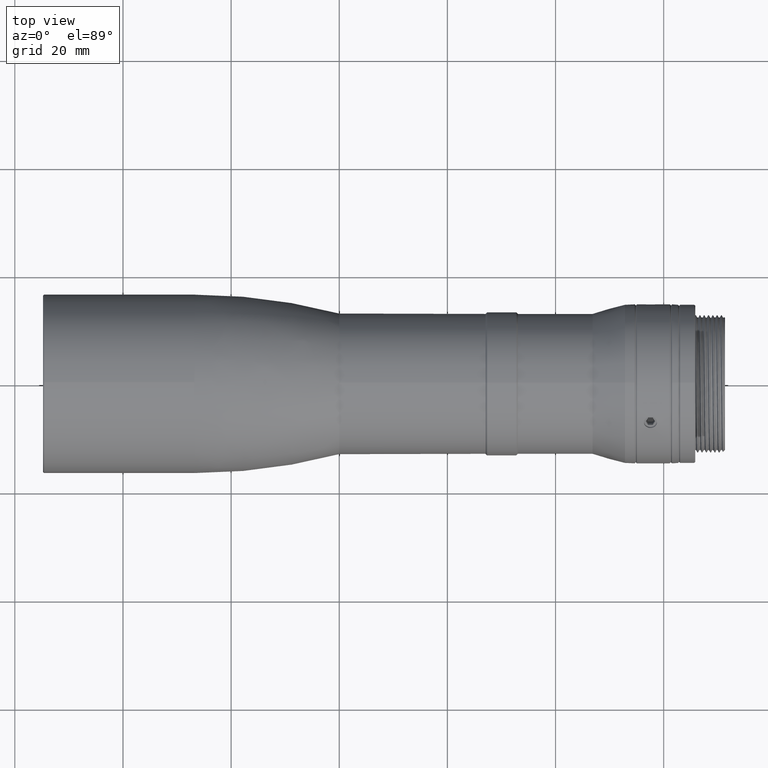
[diagram: clean part render]
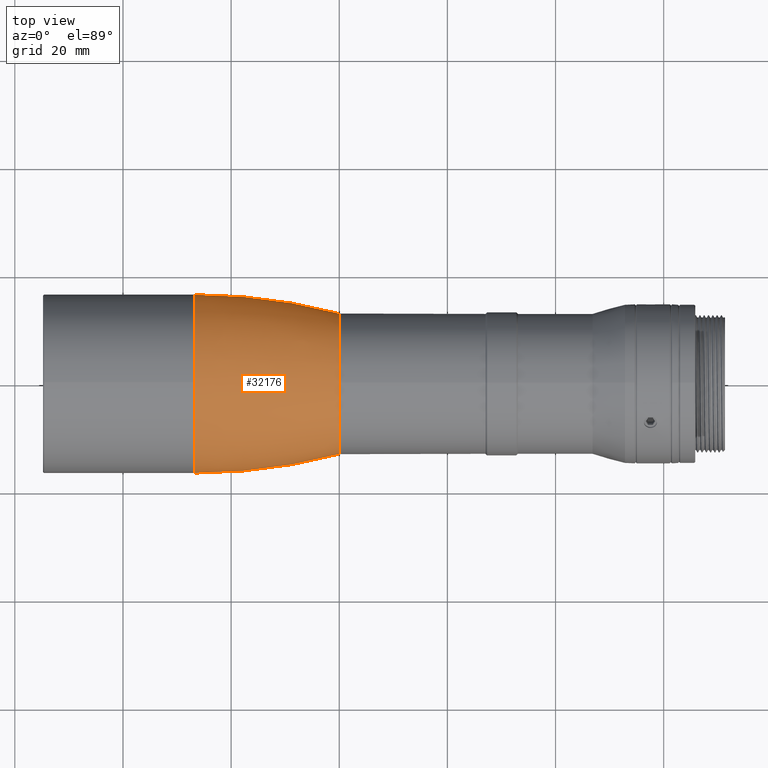
[diagram: same view with one face highlighted and labeled with its STEP entity id]
A machine part, top view. The second image highlights one B-rep face of the part: STEP entity #32176.
In plain terms, the highlighted face is a freeform B-spline surface patch.
Its self-contained STEP definition (entity closure, byte-faithful):
#320 = CARTESIAN_POINT ( 'NONE',  ( -26.80000000003987637, 16.49706879749355792, -0.3110001454116031461 ) ) ;
#472 = CARTESIAN_POINT ( 'NONE',  ( -26.80000000004443095, -7.418881565261814840E-05, 16.49999999981629983 ) ) ;
#639 = CARTESIAN_POINT ( 'NONE',  ( -26.80000000004443805, -9.810667545710922255, 16.49995588852528172 ) ) ;
#810 = CARTESIAN_POINT ( 'NONE',  ( 1.738941088189336216E-11, 12.99769056771530096, -0.2450304175911384719 ) ) ;
#1116 = CARTESIAN_POINT ( 'NONE',  ( 1.381956274801838717E-11, -5.845179419267756461E-05, 12.99999999985409183 ) ) ;
#1641 = DIRECTION ( 'NONE',  ( 0.000000000000000000, 0.000000000000000000, 1.000000000000000000 ) ) ;
#1710 = DIRECTION ( 'NONE',  ( 0.000000000000000000, 0.000000000000000000, 1.000000000000000000 ) ) ;
#1800 = DIRECTION ( 'NONE',  ( 2.697324574236714523E-13, -8.992583322630788348E-06, 0.9999999999595667877 ) ) ;
#2235 = AXIS2_PLACEMENT_3D ( 'NONE', #19603, #1800, #29392 ) ;
#2938 = CARTESIAN_POINT ( 'NONE',  ( 1.381957211513567073E-11, -7.729616854192411068, 12.99996524550353705 ) ) ;
#3097 = CARTESIAN_POINT ( 'NONE',  ( -17.73994872605382156, 16.49706879749370003, -0.3110001454091636530 ) ) ;
#3807 = CIRCLE ( 'NONE', #2235, 104.3557142859954325 ) ;
#5543 = CARTESIAN_POINT ( 'NONE',  ( -8.756185135818945753, -15.32402193307882676, -0.2890239020274884552 ) ) ;
#5854 = CARTESIAN_POINT ( 'NONE',  ( 1.530651451122814413E-11, -13.14344839263077880, 7.483036646119382240 ) ) ;
#6459 = CARTESIAN_POINT ( 'NONE',  ( 0.000000000000000000, 0.000000000000000000, 8.938311686664618842E-14 ) ) ;
#7024 = CIRCLE ( 'NONE', #8072, 12.99999999999000089 ) ;
#7439 = ORIENTED_EDGE ( 'NONE', *, *, #24541, .T. ) ;
#7650 = VERTEX_POINT ( 'NONE', #29074 ) ;
#7836 = CARTESIAN_POINT ( 'NONE',  ( -26.80000000004443805, 9.810519168079608221, 16.50004411110731795 ) ) ;
#8072 = AXIS2_PLACEMENT_3D ( 'NONE', #6459, #29003, #21473 ) ;
#8168 = CARTESIAN_POINT ( 'NONE',  ( 1.530648265535714834E-11, 13.14338110026581496, 7.483154839376892298 ) ) ;
#8335 = VERTEX_POINT ( 'NONE', #8512 ) ;
#8457 = EDGE_CURVE ( 'NONE', #16132, #15035, #3807, .T. ) ;
#8512 = CARTESIAN_POINT ( 'NONE',  ( -3.503806656360340239E-12, 1.592040838890955025E-15, 12.99999999999010036 ) ) ;
#9207 = AXIS2_PLACEMENT_3D ( 'NONE', #18179, #15714, #10974 ) ;
#10256 = CIRCLE ( 'NONE', #9207, 104.3557142859954325 ) ;
#10601 = CARTESIAN_POINT ( 'NONE',  ( -17.73994872605382156, -16.49706600013184499, -0.3111484966688090603 ) ) ;
#10921 = CARTESIAN_POINT ( 'NONE',  ( -8.756185135823146837, 9.112930196517474712, 15.32678828183328079 ) ) ;
#10974 = DIRECTION ( 'NONE',  ( 0.000000000000000000, -0.9999999999595666766, -8.992583580296957294E-06 ) ) ;
#12711 = EDGE_CURVE ( 'NONE', #15035, #21256, #29954, .T. ) ;
#12732 = FACE_OUTER_BOUND ( 'NONE', #25549, .T. ) ;
#13048 = CARTESIAN_POINT ( 'NONE',  ( -17.73994872605648609, 16.68198370419255383, 9.497850373055531037 ) ) ;
#13177 = CARTESIAN_POINT ( 'NONE',  ( 1.368904832324280096E-11, 12.99999999947404028, 0.0001139622336825304023 ) ) ;
#13207 = DIRECTION ( 'NONE',  ( 1.000000000000000000, 0.000000000000000000, 0.000000000000000000 ) ) ;
#13271 = ORIENTED_EDGE ( 'NONE', *, *, #8457, .T. ) ;
#13518 = CARTESIAN_POINT ( 'NONE',  ( -26.80000000004445226, 2.020667218593134678E-15, 16.50000000000000000 ) ) ;
#13533 = CARTESIAN_POINT ( 'NONE',  ( -26.80000000004256577, -16.68206911373250279, 9.497700358533995413 ) ) ;
#14478 = EDGE_CURVE ( 'NONE', #8335, #31032, #7024, .T. ) ;
#15035 = VERTEX_POINT ( 'NONE', #16422 ) ;
#15539 = DIRECTION ( 'NONE',  ( 1.000000000000000000, 0.000000000000000000, 2.695235889510024739E-13 ) ) ;
#15714 = DIRECTION ( 'NONE',  ( 2.698431476603614308E-13, -8.992583580296957294E-06, 0.9999999999595667877 ) ) ;
#16132 = VERTEX_POINT ( 'NONE', #13177 ) ;
#16422 = CARTESIAN_POINT ( 'NONE',  ( -26.79999958351570299, 16.49999999965815078, 7.418880885253349667E-05 ) ) ;
#16808 = DIRECTION ( 'NONE',  ( 1.000000000000000000, 0.000000000000000000, 0.000000000000000000 ) ) ;
#17266 =( BOUNDED_SURFACE ( )  B_SPLINE_SURFACE ( 3, 3, ( 
 ( #320, #20249, #7836, #472, #639, #13533, #27914 ),
 ( #3097, #13048, #18125, #25780, #23012, #27748, #10601 ),
 ( #23344, #17959, #10921, #20570, #30558, #25936, #5543 ),
 ( #810, #8168, #28068, #1116, #2938, #5854, #20410 ) ),
 .UNSPECIFIED., .F., .F., .T. ) 
 B_SPLINE_SURFACE_WITH_KNOTS ( ( 4, 4 ),
 ( 4, 3, 4 ),
 ( 0.01928601507306045015, 0.9807118293945519261 ),
 ( 0.000000000000000000, 0.5000000000000000000, 1.000000000000000000 ),
 .UNSPECIFIED. ) 
 GEOMETRIC_REPRESENTATION_ITEM ( )  RATIONAL_B_SPLINE_SURFACE ( (
 ( 0.9996555249444359914, 0.7999973438651920565, 0.7999973438651920565, 0.9996555249444359914, 0.7999973438651920565, 0.7999973438651920565, 0.9996555249444359914),
 ( 0.9940439575235160419, 0.7955065578697809725, 0.7955065578697809725, 0.9940439575235160419, 0.7955065578697809725, 0.7955065578697809725, 0.9940439575235160419),
 ( 0.9940439449423189577, 0.7955065478013879643, 0.7955065478013879643, 0.9940439449423189577, 0.7955065478013879643, 0.7955065478013879643, 0.9940439449423189577),
 ( 0.9996554872008429626, 0.7999973136600130319, 0.7999973136600130319, 0.9996554872008429626, 0.7999973136600130319, 0.7999973136600130319, 0.9996554872008429626) ) ) 
 REPRESENTATION_ITEM ( '' )  SURFACE ( )  );
#17959 = CARTESIAN_POINT ( 'NONE',  ( -8.756185135821400678, 15.49579083748996489, 8.822494098809784191 ) ) ;
#18125 = CARTESIAN_POINT ( 'NONE',  ( -17.73994872605837259, 9.810519168079677499, 16.50004411110991853 ) ) ;
#18179 = CARTESIAN_POINT ( 'NONE',  ( -26.80000000003840199, 87.85571428245971504, 0.0007900498606580300034 ) ) ;
#18313 = CARTESIAN_POINT ( 'NONE',  ( 0.000000000000000000, 0.000000000000000000, 8.938311686664618842E-14 ) ) ;
#19310 = CIRCLE ( 'NONE', #26588, 16.50000000000000000 ) ;
#19475 = ORIENTED_EDGE ( 'NONE', *, *, #14478, .F. ) ;
#19603 = CARTESIAN_POINT ( 'NONE',  ( -26.80000000003840199, -87.85571428245971504, -0.0007900498237524419343 ) ) ;
#20249 = CARTESIAN_POINT ( 'NONE',  ( -26.80000000004256577, 16.68198370419242593, 9.497850373053019268 ) ) ;
#20410 = CARTESIAN_POINT ( 'NONE',  ( 1.738944238456809147E-11, -12.99768836373322145, -0.2451473004018522306 ) ) ;
#20570 = CARTESIAN_POINT ( 'NONE',  ( -8.756185135823148613, -6.891352913705961697E-05, 15.32674730712957611 ) ) ;
#20607 = DIRECTION ( 'NONE',  ( 2.695235889510024739E-13, 0.000000000000000000, -1.000000000000000000 ) ) ;
#21236 = CARTESIAN_POINT ( 'NONE',  ( -26.80000000004445226, 0.000000000000000000, 0.000000000000000000 ) ) ;
#21256 = VERTEX_POINT ( 'NONE', #13518 ) ;
#21358 = ORIENTED_EDGE ( 'NONE', *, *, #12711, .T. ) ;
#21473 = DIRECTION ( 'NONE',  ( 2.695235889510024739E-13, 0.000000000000000000, -1.000000000000000000 ) ) ;
#22966 = AXIS2_PLACEMENT_3D ( 'NONE', #18313, #15539, #20607 ) ;
#23012 = CARTESIAN_POINT ( 'NONE',  ( -17.73994872605837259, -9.810667545710989756, 16.49995588852783612 ) ) ;
#23344 = CARTESIAN_POINT ( 'NONE',  ( -8.756185135818945753, 15.32402453153085098, -0.2888860994656853309 ) ) ;
#24230 = ORIENTED_EDGE ( 'NONE', *, *, #30936, .F. ) ;
#24541 = EDGE_CURVE ( 'NONE', #7650, #31032, #10256, .T. ) ;
#25549 = EDGE_LOOP ( 'NONE', ( #21358, #25729, #7439, #19475, #24230, #13271 ) ) ;
#25729 = ORIENTED_EDGE ( 'NONE', *, *, #31101, .T. ) ;
#25780 = CARTESIAN_POINT ( 'NONE',  ( -17.73994872605835127, -7.418881565250978239E-05, 16.49999999981890397 ) ) ;
#25936 = CARTESIAN_POINT ( 'NONE',  ( -8.756185135821400678, -15.49587017388018495, 8.822354751256687777 ) ) ;
#26588 = AXIS2_PLACEMENT_3D ( 'NONE', #21236, #16808, #1641 ) ;
#27748 = CARTESIAN_POINT ( 'NONE',  ( -17.73994872605648609, -16.68206911373264134, 9.497700358536507181 ) ) ;
#27914 = CARTESIAN_POINT ( 'NONE',  ( -26.80000000003987637, -16.49706600013168867, -0.3111484966712484979 ) ) ;
#28068 = CARTESIAN_POINT ( 'NONE',  ( 1.381955338090108584E-11, 7.729499950604033387, 13.00003475420461641 ) ) ;
#28699 = CIRCLE ( 'NONE', #22966, 12.99999999999000089 ) ;
#29003 = DIRECTION ( 'NONE',  ( 1.000000000000000000, 0.000000000000000000, 2.695235889510024739E-13 ) ) ;
#29074 = CARTESIAN_POINT ( 'NONE',  ( -26.80000000004109850, -16.49999999970120257, -6.800641048641789988E-05 ) ) ;
#29392 = DIRECTION ( 'NONE',  ( 0.000000000000000000, -0.9999999999595666766, -8.992583322630786654E-06 ) ) ;
#29954 = CIRCLE ( 'NONE', #31009, 16.50000000000000000 ) ;
#30558 = CARTESIAN_POINT ( 'NONE',  ( -8.756185135823146837, -9.113068023575745968, 15.32670633242587677 ) ) ;
#30592 = CARTESIAN_POINT ( 'NONE',  ( 1.410113344907664034E-11, -12.99999999947376139, -0.0001139606293408844054 ) ) ;
#30936 = EDGE_CURVE ( 'NONE', #16132, #8335, #28699, .T. ) ;
#31009 = AXIS2_PLACEMENT_3D ( 'NONE', #31624, #13207, #1710 ) ;
#31032 = VERTEX_POINT ( 'NONE', #30592 ) ;
#31101 = EDGE_CURVE ( 'NONE', #21256, #7650, #19310, .T. ) ;
#31624 = CARTESIAN_POINT ( 'NONE',  ( -26.80000000004445226, 0.000000000000000000, 0.000000000000000000 ) ) ;
#32176 = ADVANCED_FACE ( 'NONE', ( #12732 ), #17266, .F. ) ;